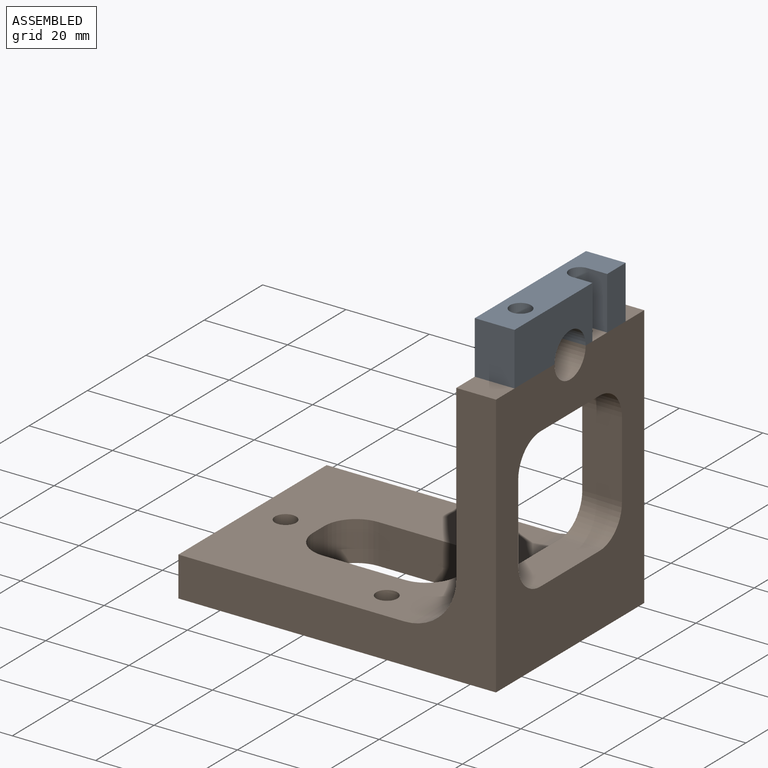
[diagram: assembled view]
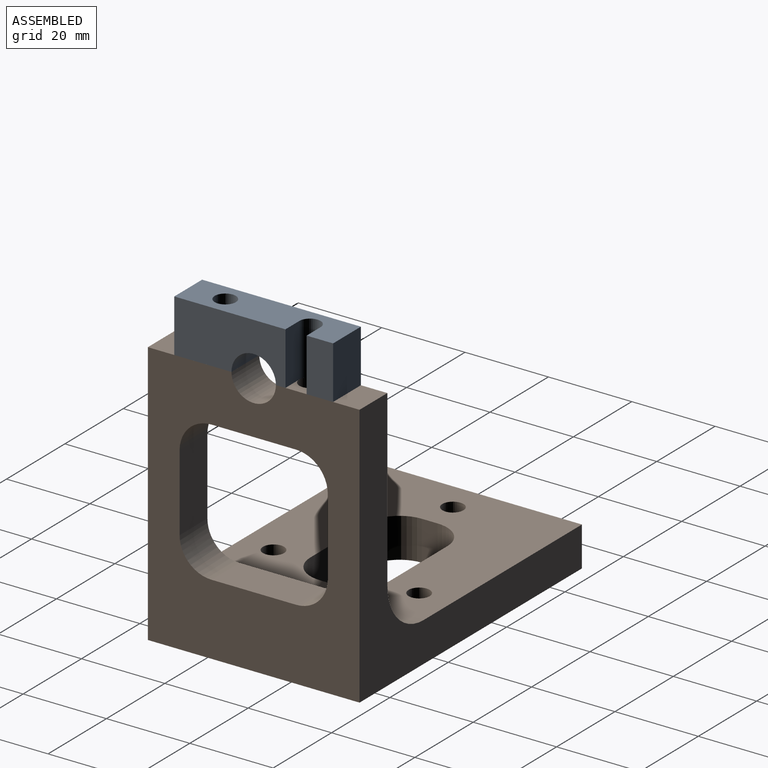
[diagram: assembled view, second angle]
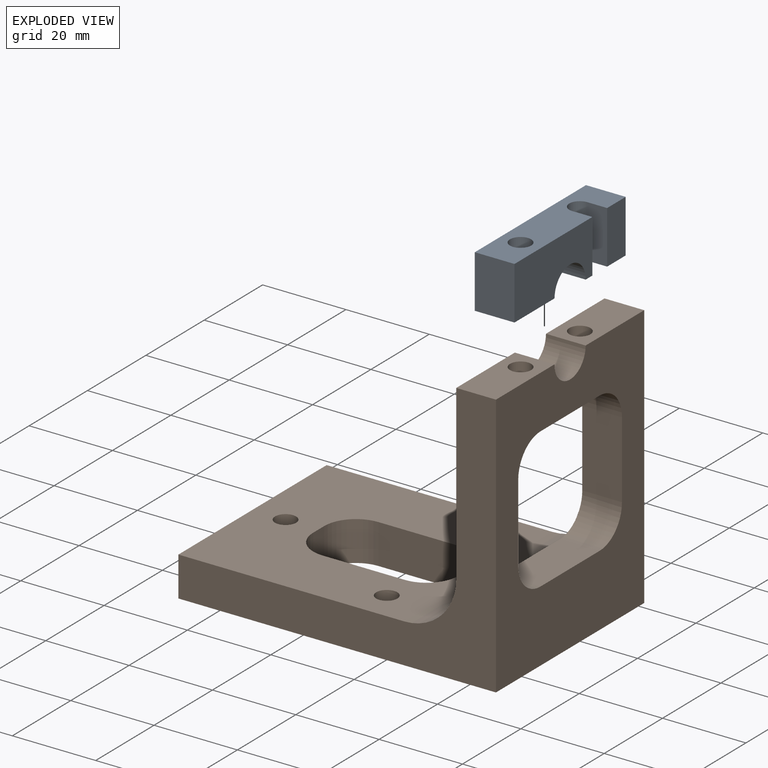
[diagram: exploded view]
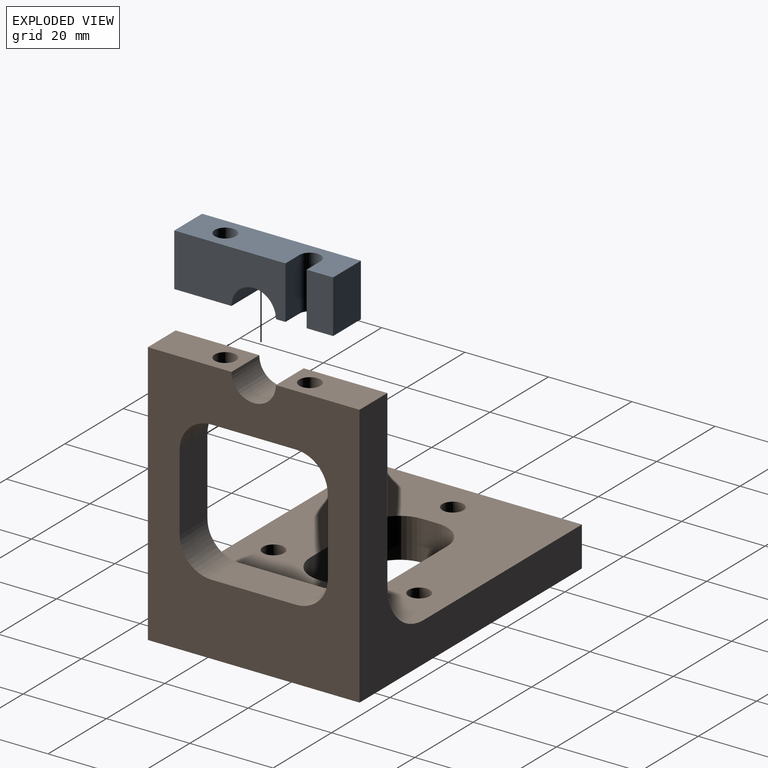
[diagram: exploded view, second angle]
ASSEMBLY  parts=2 mates=2
PART A: 13 faces, bbox 9.5x38.1x12.7 mm
  f0: plane 12.7x6.35mm, normal (1,0,0), area 80.6mm2, adj f1,f5,f6,f11
  f1: plane 13.72x9.53mm, normal (0,0,-1), area 96.3mm2, adj f0,f4,f5,f7,f8,f9,f11,f12
  f2: plane 12.7x9.53mm, normal (0,-1,0), area 121mm2, adj f3,f6,f7,f8
  f3: plane 13.72x9.53mm, normal (0,0,-1), area 110.4mm2, adj f2,f4,f7,f8,f10
  f4: cylinder r=5.33mm len=10.67mm, axis (-1,0,0), area 159.6mm2, adj f1,f3,f7,f8
  f5: plane 12.7x9.53mm, normal (0,1,0), area 121mm2, adj f0,f1,f6,f8
  f6: plane 38.1x9.53mm, normal (0,0,1), area 308.2mm2, adj f0,f2,f5,f7,f8,f9,f10,f11
  f7: plane 26.67x12.7mm, normal (1,0,0), area 294mm2, adj f1,f2,f3,f4,f6,f12
  f8: plane 38.1x12.7mm, normal (-1,0,0), area 439.2mm2, adj f1,f2,f3,f4,f5,f6
  f9: cylinder r=2.54mm len=12.7mm, axis (0,0,1), area 101.3mm2, adj f1,f6,f11,f12
  f10: cylinder r=2.54mm len=12.7mm, axis (0,0,1), area 202.7mm2, adj f3,f6
  f11: plane 12.7x4.78mm, normal (0,-1,0), area 60.6mm2, adj f0,f1,f6,f9
  f12: plane 12.7x4.78mm, normal (0,1,0), area 60.6mm2, adj f1,f6,f7,f9
PART B: 36 faces, bbox 76.2x50.8x63.5 mm
  f0: plane 63.5x50.8mm, normal (1,0,0), area 2034.2mm2, adj f1,f3,f6,f7,f8,f9,f10,f11
  f1: plane 20.07x9.53mm, normal (0,0,1), area 170.9mm2, adj f0,f4,f7,f33,f35
  f2: plane 55.2x50.8mm, normal (0,0,1), area 2104.6mm2, adj f5,f7,f8,f13,f14,f15,f16,f17
  f3: plane 76.2x50.8mm, normal (0,0,-1), area 3194.7mm2, adj f0,f5,f7,f8,f13,f14,f15,f16
  f4: plane 50.8x41.53mm, normal (-1,0,0), area 1065.7mm2, adj f1,f6,f7,f8,f9,f10,f12,f21
  f5: plane 50.8x9.53mm, normal (-1,0,0), area 483.9mm2, adj f2,f3,f7,f8
  f6: plane 20.07x9.53mm, normal (0,0,1), area 170.9mm2, adj f0,f4,f8,f33,f34
  f7: plane 76.2x63.5mm, normal (0,-1,0), area 1273.2mm2, adj f0,f1,f2,f3,f4,f5,f29
  f8: plane 76.2x63.5mm, normal (0,1,0), area 1273.2mm2, adj f0,f2,f3,f4,f5,f6,f25
  f9: plane 20.32x9.53mm, normal (0,0,-1), area 173.3mm2, adj f0,f4,f21,f24,f34,f35
  f10: plane 18.42x9.53mm, normal (0,1,0), area 175.4mm2, adj f0,f4,f21,f22
  f11: plane 20.32x9.53mm, normal (0,0,1), area 193.5mm2, adj f0,f22,f23,f27
  f12: plane 18.42x9.53mm, normal (0,-1,0), area 175.4mm2, adj f0,f4,f23,f24
  f13: plane 19.69x9.53mm, normal (0,1,0), area 187.5mm2, adj f2,f3,f17,f20
  f14: plane 9.53x3.81mm, normal (1,0,0), area 36.3mm2, adj f2,f3,f17,f18
  f15: plane 19.69x9.53mm, normal (0,-1,0), area 187.5mm2, adj f2,f3,f18,f19
  f16: plane 9.53x3.81mm, normal (-1,0,0), area 36.3mm2, adj f2,f3,f19,f20
  f17: cylinder r=7.62mm len=9.53mm, axis (0,0,-1), area 114mm2, adj f2,f3,f13,f14
  f18: cylinder r=7.62mm len=9.53mm, axis (0,0,1), area 114mm2, adj f2,f3,f14,f15
  f19: cylinder r=7.62mm len=9.53mm, axis (0,0,-1), area 114mm2, adj f2,f3,f15,f16
  f20: cylinder r=7.62mm len=9.53mm, axis (0,0,1), area 114mm2, adj f2,f3,f13,f16
  f21: cylinder r=7.62mm len=9.53mm, axis (1,0,0), area 103.7mm2, adj f0,f4,f9,f10,f35
  f22: cylinder r=7.62mm len=9.53mm, axis (-1,0,0), area 114mm2, adj f0,f4,f10,f11,f28
  f23: cylinder r=7.62mm len=9.53mm, axis (1,0,0), area 114mm2, adj f0,f4,f11,f12,f26
  f24: cylinder r=7.62mm len=9.53mm, axis (-1,0,0), area 103.7mm2, adj f0,f4,f9,f12,f34
  f25: cylinder r=12.45mm len=12.45mm, axis (0,-1,0), area 159.3mm2, adj f2,f4,f8,f26
  f26: bspline ~12.88x12.85mm, area 114.7mm2, adj f2,f23,f25,f27
  f27: cylinder r=12.45mm len=20.32mm, axis (0,-1,0), area 296.6mm2, adj f2,f11,f26,f28
  f28: bspline ~12.79x12.77mm, area 114.7mm2, adj f2,f22,f27,f29
  f29: cylinder r=12.45mm len=12.45mm, axis (0,-1,0), area 159.3mm2, adj f2,f4,f7,f28
  f30: cylinder r=2.54mm len=9.53mm, axis (0,0,1), area 152mm2, adj f2,f3
  f31: cylinder r=2.54mm len=9.53mm, axis (0,0,1), area 152mm2, adj f2,f3
  f32: cylinder r=2.54mm len=9.53mm, axis (0,0,1), area 152mm2, adj f2,f3
  f33: cylinder r=5.33mm len=10.67mm, axis (1,0,0), area 159.6mm2, adj f0,f1,f4,f6
  f34: cylinder r=2.54mm len=12.7mm, axis (0,0,1), area 202.7mm2, adj f6,f9,f24
  f35: cylinder r=2.54mm len=12.7mm, axis (0,0,1), area 202.7mm2, adj f1,f9,f21
PLACE A t=(-61.01,-6.71,32.3)mm
PLACE B t=(-61.01,18.69,-21.67)mm
MATE fastened B.f0 <-> A.f7  axis (1,0,0) through (-51.49,-12.04,32.3)mm
MATE planar B.f33 <-> A.f7  axis (1,0,0) through (-51.49,-6.71,32.3)mm
